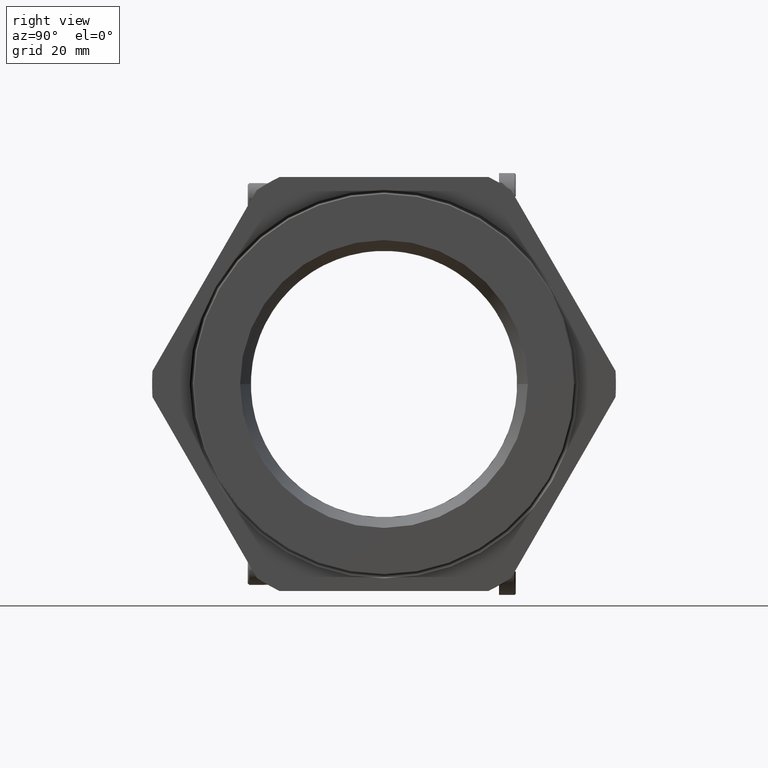
[diagram: clean part render]
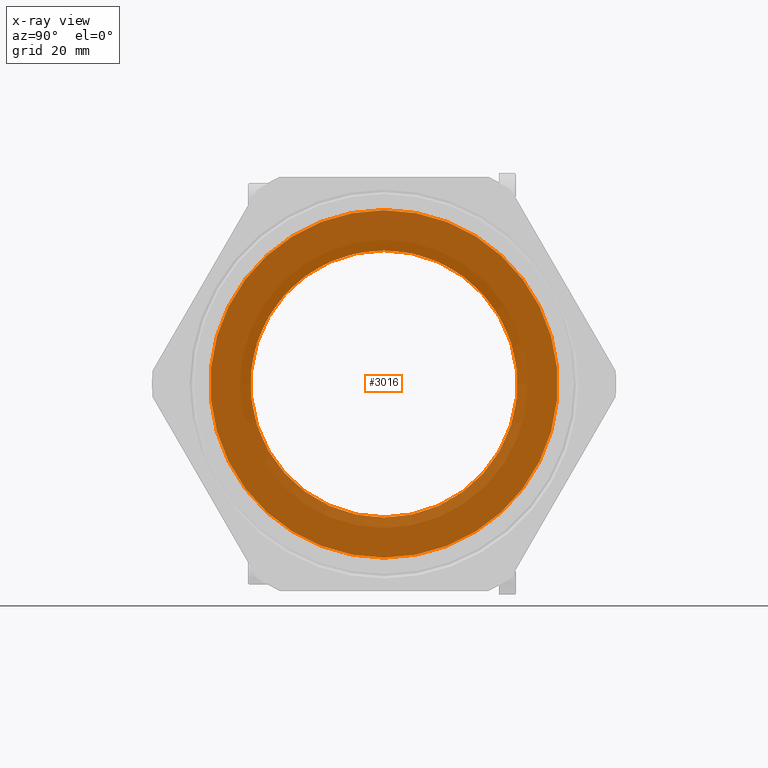
[diagram: x-ray — body ghosted, one internal face saturated and labeled with its STEP entity id]
A machine part, right view, then the same camera in x-ray: the body is ghosted and one INTERNAL B-rep face — a face not visible from any outside direction — is saturated and labeled: STEP entity #3016.
In plain terms, the highlighted planar face has unit normal (1, 0, 0).
Its self-contained STEP definition (entity closure, byte-faithful):
#2849 = VERTEX_POINT ( 'NONE', #8267 ) ;
#2862 = EDGE_LOOP ( 'NONE', ( #3011, #3010 ) ) ;
#2873 = EDGE_CURVE ( 'NONE', #2874, #2849, #8292, .T. ) ;
#2874 = VERTEX_POINT ( 'NONE', #8287 ) ;
#2942 = VERTEX_POINT ( 'NONE', #8403 ) ;
#2944 = EDGE_CURVE ( 'NONE', #2942, #2945, #8402, .T. ) ;
#2945 = VERTEX_POINT ( 'NONE', #8397 ) ;
#2947 = EDGE_CURVE ( 'NONE', #2849, #2874, #8396, .T. ) ;
#3010 = ORIENTED_EDGE ( 'NONE', *, *, #2944, .F. ) ;
#3011 = ORIENTED_EDGE ( 'NONE', *, *, #3019, .F. ) ;
#3016 = ADVANCED_FACE ( 'NONE', ( #8522, #8521 ), #8583, .T. ) ;
#3017 = EDGE_LOOP ( 'NONE', ( #3022, #3024 ) ) ;
#3019 = EDGE_CURVE ( 'NONE', #2945, #2942, #8571, .T. ) ;
#3022 = ORIENTED_EDGE ( 'NONE', *, *, #2873, .T. ) ;
#3024 = ORIENTED_EDGE ( 'NONE', *, *, #2947, .T. ) ;
#8267 = CARTESIAN_POINT ( 'NONE',  ( -0.7254722222222221900, 1.377115325641198700E-016, 1.124500000000000100 ) ) ;
#8287 = CARTESIAN_POINT ( 'NONE',  ( -0.7254722222222221900, 0.0000000000000000000, -1.124500000000000100 ) ) ;
#8288 = DIRECTION ( 'NONE',  ( 0.0000000000000000000, 0.0000000000000000000, -1.000000000000000000 ) ) ;
#8289 = DIRECTION ( 'NONE',  ( 1.000000000000000000, 0.0000000000000000000, 0.0000000000000000000 ) ) ;
#8290 = CARTESIAN_POINT ( 'NONE',  ( -0.7254722222222221900, 0.0000000000000000000, 0.0000000000000000000 ) ) ;
#8291 = AXIS2_PLACEMENT_3D ( 'NONE', #8290, #8289, #8288 ) ;
#8292 = CIRCLE ( 'NONE', #8291, 1.124500000000000100 ) ;
#8392 = DIRECTION ( 'NONE',  ( 0.0000000000000000000, 0.0000000000000000000, -1.000000000000000000 ) ) ;
#8393 = DIRECTION ( 'NONE',  ( 1.000000000000000000, 0.0000000000000000000, 0.0000000000000000000 ) ) ;
#8394 = CARTESIAN_POINT ( 'NONE',  ( -0.7254722222222221900, 0.0000000000000000000, 0.0000000000000000000 ) ) ;
#8395 = AXIS2_PLACEMENT_3D ( 'NONE', #8394, #8393, #8392 ) ;
#8396 = CIRCLE ( 'NONE', #8395, 1.124500000000000100 ) ;
#8397 = CARTESIAN_POINT ( 'NONE',  ( -0.7254722222222221900, 0.0000000000000000000, -0.8649999999999998800 ) ) ;
#8398 = DIRECTION ( 'NONE',  ( 0.0000000000000000000, 0.0000000000000000000, -1.000000000000000000 ) ) ;
#8399 = DIRECTION ( 'NONE',  ( 1.000000000000000000, 0.0000000000000000000, 0.0000000000000000000 ) ) ;
#8400 = CARTESIAN_POINT ( 'NONE',  ( -0.7254722222222221900, 0.0000000000000000000, 0.0000000000000000000 ) ) ;
#8401 = AXIS2_PLACEMENT_3D ( 'NONE', #8400, #8399, #8398 ) ;
#8402 = CIRCLE ( 'NONE', #8401, 0.8649999999999998800 ) ;
#8403 = CARTESIAN_POINT ( 'NONE',  ( -0.7254722222222221900, 1.059319481262460500E-016, 0.8649999999999998800 ) ) ;
#8521 = FACE_BOUND ( 'NONE', #2862, .T. ) ;
#8522 = FACE_OUTER_BOUND ( 'NONE', #3017, .T. ) ;
#8568 = DIRECTION ( 'NONE',  ( 0.0000000000000000000, 0.0000000000000000000, -1.000000000000000000 ) ) ;
#8569 = DIRECTION ( 'NONE',  ( 1.000000000000000000, 0.0000000000000000000, 0.0000000000000000000 ) ) ;
#8570 = AXIS2_PLACEMENT_3D ( 'NONE', #8576, #8569, #8568 ) ;
#8571 = CIRCLE ( 'NONE', #8570, 0.8649999999999998800 ) ;
#8576 = CARTESIAN_POINT ( 'NONE',  ( -0.7254722222222221900, 0.0000000000000000000, 0.0000000000000000000 ) ) ;
#8579 = DIRECTION ( 'NONE',  ( 0.0000000000000000000, 0.0000000000000000000, -1.000000000000000000 ) ) ;
#8580 = DIRECTION ( 'NONE',  ( 1.000000000000000000, 0.0000000000000000000, 0.0000000000000000000 ) ) ;
#8581 = CARTESIAN_POINT ( 'NONE',  ( -0.7254722222222221900, 1.124500000000000100, 0.0000000000000000000 ) ) ;
#8582 = AXIS2_PLACEMENT_3D ( 'NONE', #8581, #8580, #8579 ) ;
#8583 = PLANE ( 'NONE',  #8582 ) ;